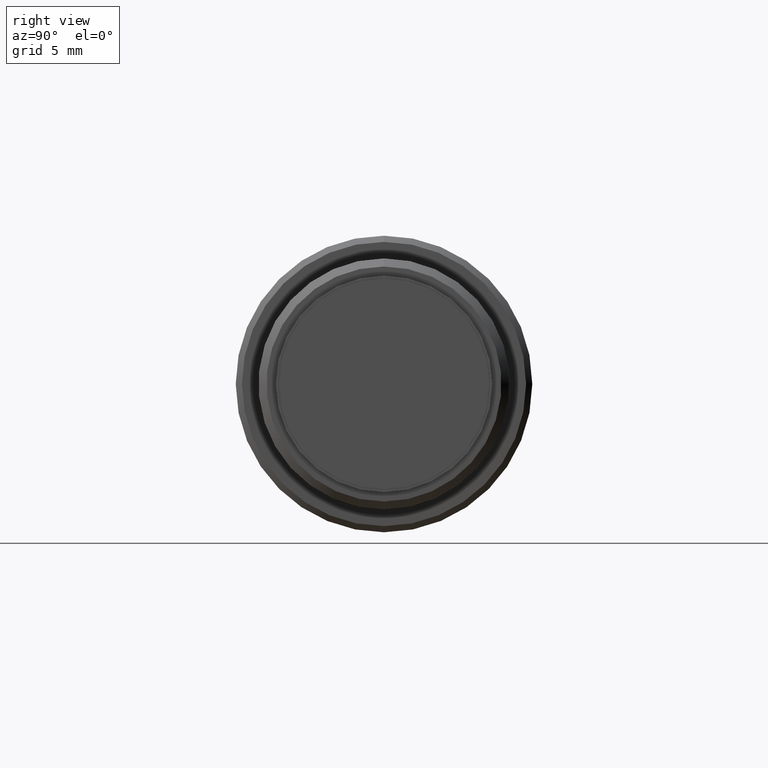
[diagram: clean part render]
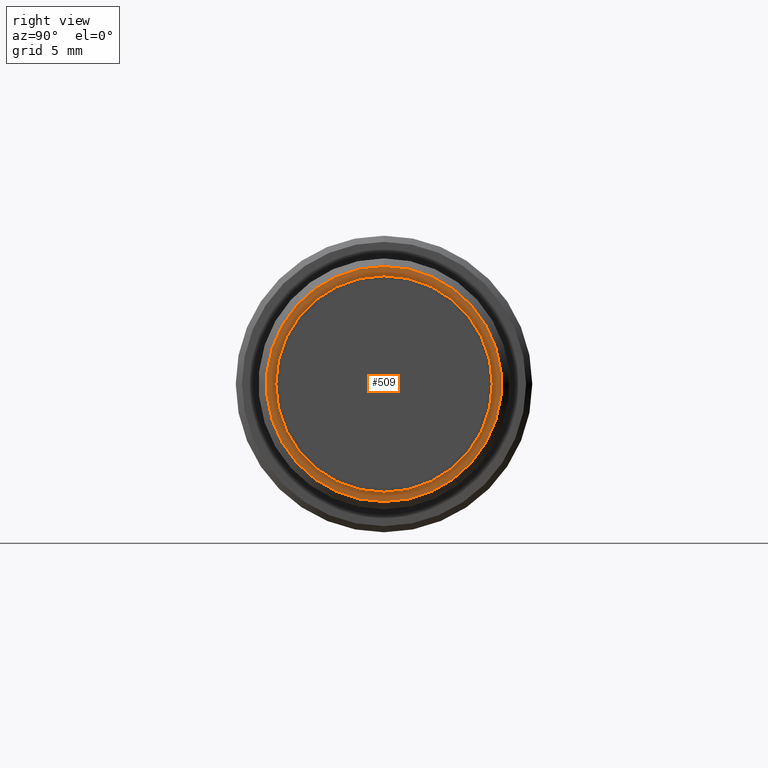
[diagram: same view with one face highlighted and labeled with its STEP entity id]
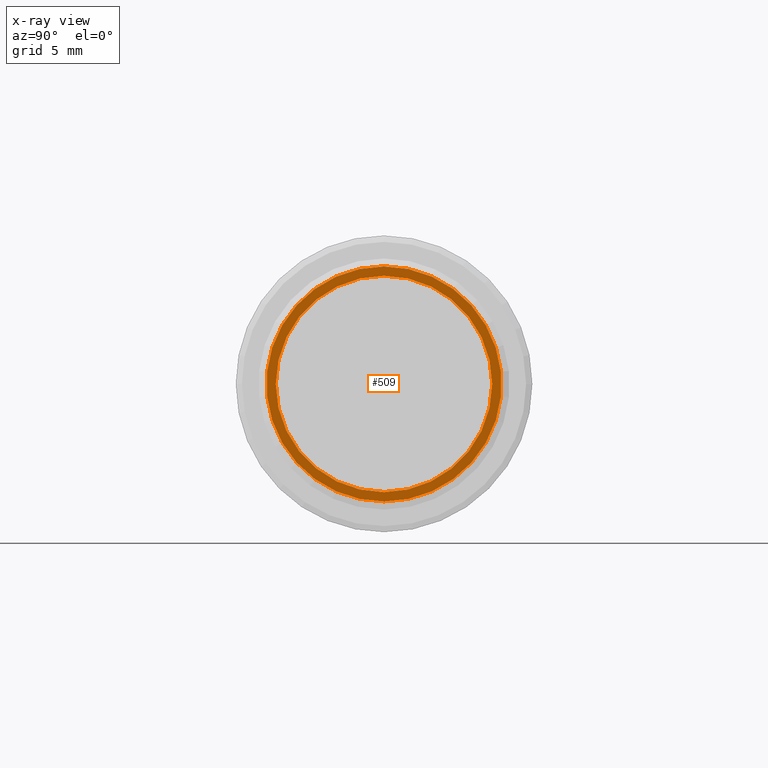
[diagram: x-ray of the same camera — body ghosted, the highlighted face saturated]
A machine part, right view. The second image highlights one B-rep face of the part: STEP entity #509.
The next image is the same camera in x-ray: the body ghosted, the highlighted face saturated — about 0% of this face is hidden behind the body in this view.
In plain terms, the highlighted planar face has unit normal (1, 0, 0).
Its self-contained STEP definition (entity closure, byte-faithful):
#7 = DIRECTION ( 'NONE',  ( 1.000000000000000000, 0.000000000000000000, 0.000000000000000000 ) ) ;
#14 = AXIS2_PLACEMENT_3D ( 'NONE', #599, #181, #435 ) ;
#65 = VERTEX_POINT ( 'NONE', #623 ) ;
#74 = VERTEX_POINT ( 'NONE', #193 ) ;
#96 = PLANE ( 'NONE',  #14 ) ;
#151 = CARTESIAN_POINT ( 'NONE',  ( -1.399999999999999911, 0.000000000000000000, 0.000000000000000000 ) ) ;
#165 = ORIENTED_EDGE ( 'NONE', *, *, #631, .T. ) ;
#181 = DIRECTION ( 'NONE',  ( 1.000000000000000000, 0.000000000000000000, 0.000000000000000000 ) ) ;
#193 = CARTESIAN_POINT ( 'NONE',  ( -1.399999999999999911, 0.000000000000000000, -8.759999999999999787 ) ) ;
#216 = CARTESIAN_POINT ( 'NONE',  ( -1.399999999999999911, 0.000000000000000000, 0.000000000000000000 ) ) ;
#234 = CARTESIAN_POINT ( 'NONE',  ( -1.399999999999999911, 1.204440126961421862E-15, -9.509999999999999787 ) ) ;
#248 = AXIS2_PLACEMENT_3D ( 'NONE', #1021, #7, #780 ) ;
#388 = AXIS2_PLACEMENT_3D ( 'NONE', #216, #956, #469 ) ;
#410 = VERTEX_POINT ( 'NONE', #234 ) ;
#419 = DIRECTION ( 'NONE',  ( 1.000000000000000000, 0.000000000000000000, 0.000000000000000000 ) ) ;
#435 = DIRECTION ( 'NONE',  ( 0.000000000000000000, 1.000000000000000000, 0.000000000000000000 ) ) ;
#469 = DIRECTION ( 'NONE',  ( 0.000000000000000000, 0.000000000000000000, -1.000000000000000000 ) ) ;
#494 = AXIS2_PLACEMENT_3D ( 'NONE', #945, #1033, #772 ) ;
#501 = EDGE_CURVE ( 'NONE', #74, #65, #830, .T. ) ;
#509 = ADVANCED_FACE ( 'NONE', ( #691, #533 ), #96, .T. ) ;
#513 = VERTEX_POINT ( 'NONE', #686 ) ;
#533 = FACE_BOUND ( 'NONE', #878, .T. ) ;
#574 = DIRECTION ( 'NONE',  ( 0.000000000000000000, 0.000000000000000000, -1.000000000000000000 ) ) ;
#599 = CARTESIAN_POINT ( 'NONE',  ( -1.399999999999999911, 9.509999999999999787, 0.000000000000000000 ) ) ;
#623 = CARTESIAN_POINT ( 'NONE',  ( -1.399999999999999911, 1.072790596053079921E-15, 8.759999999999999787 ) ) ;
#631 = EDGE_CURVE ( 'NONE', #410, #513, #955, .T. ) ;
#686 = CARTESIAN_POINT ( 'NONE',  ( -1.399999999999999911, 0.000000000000000000, 9.509999999999999787 ) ) ;
#691 = FACE_OUTER_BOUND ( 'NONE', #997, .T. ) ;
#772 = DIRECTION ( 'NONE',  ( 0.000000000000000000, 0.000000000000000000, -1.000000000000000000 ) ) ;
#780 = DIRECTION ( 'NONE',  ( 0.000000000000000000, 0.000000000000000000, -1.000000000000000000 ) ) ;
#808 = EDGE_CURVE ( 'NONE', #65, #74, #1075, .T. ) ;
#819 = ORIENTED_EDGE ( 'NONE', *, *, #501, .F. ) ;
#830 = CIRCLE ( 'NONE', #494, 8.759999999999999787 ) ;
#834 = CIRCLE ( 'NONE', #248, 9.509999999999999787 ) ;
#868 = AXIS2_PLACEMENT_3D ( 'NONE', #151, #419, #574 ) ;
#878 = EDGE_LOOP ( 'NONE', ( #819, #979 ) ) ;
#945 = CARTESIAN_POINT ( 'NONE',  ( -1.399999999999999911, 0.000000000000000000, 0.000000000000000000 ) ) ;
#955 = CIRCLE ( 'NONE', #388, 9.509999999999999787 ) ;
#956 = DIRECTION ( 'NONE',  ( 1.000000000000000000, 0.000000000000000000, 0.000000000000000000 ) ) ;
#979 = ORIENTED_EDGE ( 'NONE', *, *, #808, .F. ) ;
#982 = EDGE_CURVE ( 'NONE', #513, #410, #834, .T. ) ;
#997 = EDGE_LOOP ( 'NONE', ( #1093, #165 ) ) ;
#1021 = CARTESIAN_POINT ( 'NONE',  ( -1.399999999999999911, 0.000000000000000000, 0.000000000000000000 ) ) ;
#1033 = DIRECTION ( 'NONE',  ( 1.000000000000000000, 0.000000000000000000, 0.000000000000000000 ) ) ;
#1075 = CIRCLE ( 'NONE', #868, 8.759999999999999787 ) ;
#1093 = ORIENTED_EDGE ( 'NONE', *, *, #982, .T. ) ;